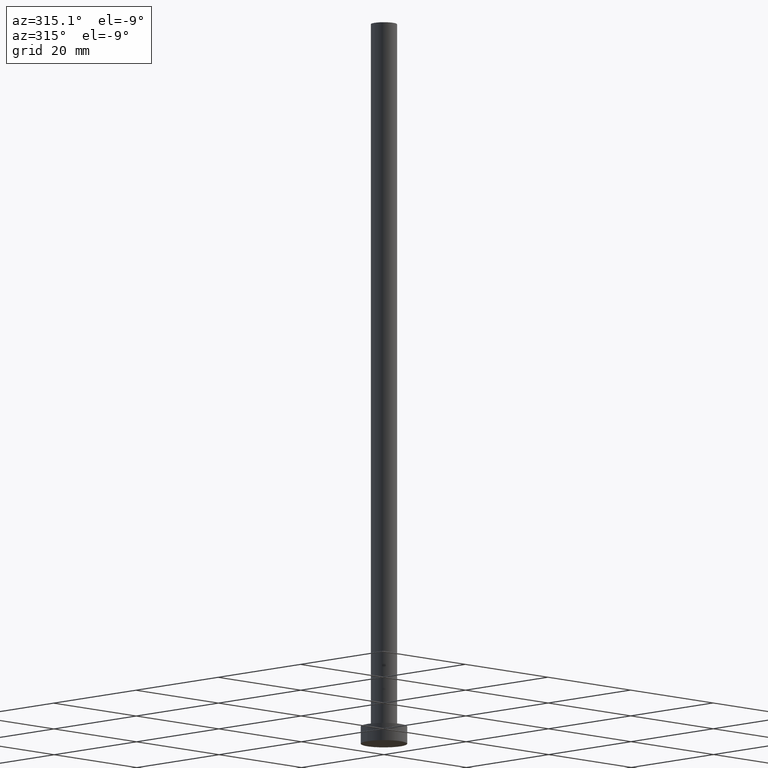
[diagram: clean part render]
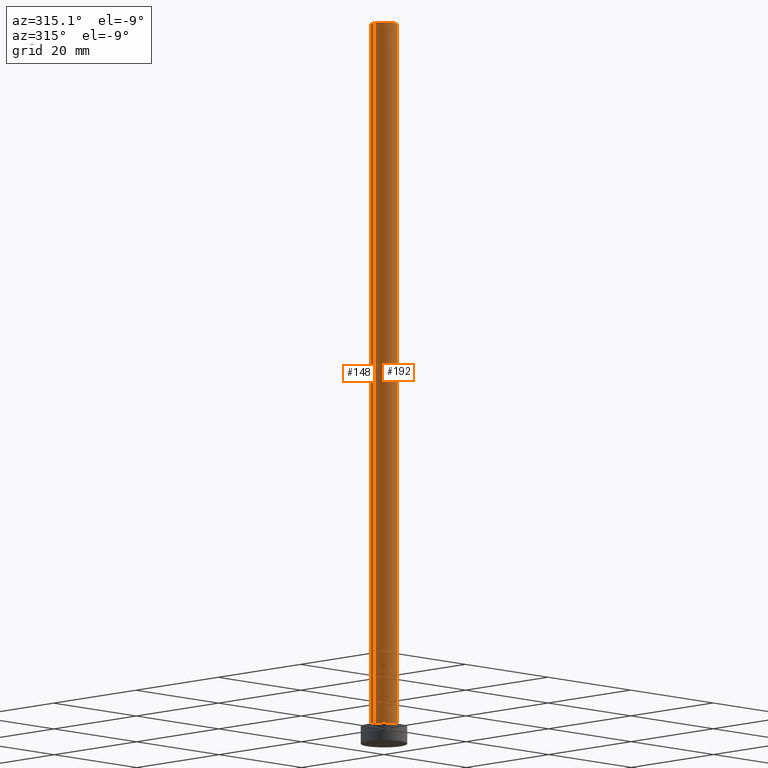
[diagram: same view with one multi-face feature highlighted, each face labeled with its STEP entity id]
A machine part, auxiliary view. The highlighted faces form ONE feature: a constant-radius fillet chain: 2 tangent blend faces with common blend radius 2.25 mm. The faces share edges in the B-rep.
Their STEP definitions:
[1] entity #148 (Cylinder):
#7 = DIRECTION ( 'NONE',  ( -0.000000000000000000, -0.000000000000000000, -1.000000000000000000 ) ) ;
#15 = EDGE_CURVE ( 'NONE', #175, #171, #78, .T. ) ;
#19 = DIRECTION ( 'NONE',  ( -1.000000000000000000, 0.000000000000000000, 0.000000000000000000 ) ) ;
#34 = EDGE_CURVE ( 'NONE', #136, #114, #228, .T. ) ;
#36 = ORIENTED_EDGE ( 'NONE', *, *, #15, .F. ) ;
#37 = FACE_OUTER_BOUND ( 'NONE', #191, .T. ) ;
#39 = CYLINDRICAL_SURFACE ( 'NONE', #249, 2.250000000000000000 ) ;
#40 = EDGE_CURVE ( 'NONE', #136, #175, #53, .T. ) ;
#50 = CARTESIAN_POINT ( 'NONE',  ( 2.250000000000000000, 2.755455298081543792E-16, 125.0000000000000000 ) ) ;
#53 = CIRCLE ( 'NONE', #88, 2.250000000000000000 ) ;
#55 = CARTESIAN_POINT ( 'NONE',  ( 0.000000000000000000, 0.000000000000000000, 125.0000000000000000 ) ) ;
#75 = AXIS2_PLACEMENT_3D ( 'NONE', #231, #197, #138 ) ;
#78 = LINE ( 'NONE', #156, #222 ) ;
#82 = CARTESIAN_POINT ( 'NONE',  ( 2.250000000000000000, 2.755455298081543792E-16, 125.0000000000000000 ) ) ;
#85 = DIRECTION ( 'NONE',  ( -0.000000000000000000, -0.000000000000000000, -1.000000000000000000 ) ) ;
#88 = AXIS2_PLACEMENT_3D ( 'NONE', #55, #151, #226 ) ;
#99 = ORIENTED_EDGE ( 'NONE', *, *, #153, .T. ) ;
#114 = VERTEX_POINT ( 'NONE', #217 ) ;
#121 = CARTESIAN_POINT ( 'NONE',  ( 0.000000000000000000, 0.000000000000000000, 125.0000000000000000 ) ) ;
#136 = VERTEX_POINT ( 'NONE', #82 ) ;
#138 = DIRECTION ( 'NONE',  ( 1.000000000000000000, 0.000000000000000000, 0.000000000000000000 ) ) ;
#145 = VECTOR ( 'NONE', #207, 1000.000000000000000 ) ;
#148 = ADVANCED_FACE ( 'NONE', ( #37 ), #39, .T. ) ;
#151 = DIRECTION ( 'NONE',  ( 0.000000000000000000, 0.000000000000000000, 1.000000000000000000 ) ) ;
#153 = EDGE_CURVE ( 'NONE', #114, #171, #185, .T. ) ;
#156 = CARTESIAN_POINT ( 'NONE',  ( -2.250000000000000000, 0.000000000000000000, 125.0000000000000000 ) ) ;
#171 = VERTEX_POINT ( 'NONE', #180 ) ;
#175 = VERTEX_POINT ( 'NONE', #253 ) ;
#180 = CARTESIAN_POINT ( 'NONE',  ( -2.250000000000000000, 0.000000000000000000, 3.000000000000000000 ) ) ;
#185 = CIRCLE ( 'NONE', #75, 2.250000000000000000 ) ;
#191 = EDGE_LOOP ( 'NONE', ( #193, #211, #99, #36 ) ) ;
#193 = ORIENTED_EDGE ( 'NONE', *, *, #40, .F. ) ;
#197 = DIRECTION ( 'NONE',  ( 0.000000000000000000, 0.000000000000000000, 1.000000000000000000 ) ) ;
#207 = DIRECTION ( 'NONE',  ( -0.000000000000000000, -0.000000000000000000, -1.000000000000000000 ) ) ;
#211 = ORIENTED_EDGE ( 'NONE', *, *, #34, .T. ) ;
#217 = CARTESIAN_POINT ( 'NONE',  ( 2.250000000000000000, 2.755455298081543792E-16, 3.000000000000000000 ) ) ;
#222 = VECTOR ( 'NONE', #7, 1000.000000000000000 ) ;
#226 = DIRECTION ( 'NONE',  ( 1.000000000000000000, 0.000000000000000000, 0.000000000000000000 ) ) ;
#228 = LINE ( 'NONE', #50, #145 ) ;
#231 = CARTESIAN_POINT ( 'NONE',  ( 0.000000000000000000, 0.000000000000000000, 3.000000000000000000 ) ) ;
#249 = AXIS2_PLACEMENT_3D ( 'NONE', #121, #85, #19 ) ;
#253 = CARTESIAN_POINT ( 'NONE',  ( -2.250000000000000000, 0.000000000000000000, 125.0000000000000000 ) ) ;
[2] entity #192 (Cylinder):
#7 = DIRECTION ( 'NONE',  ( -0.000000000000000000, -0.000000000000000000, -1.000000000000000000 ) ) ;
#13 = ORIENTED_EDGE ( 'NONE', *, *, #103, .T. ) ;
#14 = CARTESIAN_POINT ( 'NONE',  ( 0.000000000000000000, 0.000000000000000000, 125.0000000000000000 ) ) ;
#15 = EDGE_CURVE ( 'NONE', #175, #171, #78, .T. ) ;
#27 = EDGE_LOOP ( 'NONE', ( #66, #247, #57, #13 ) ) ;
#34 = EDGE_CURVE ( 'NONE', #136, #114, #228, .T. ) ;
#50 = CARTESIAN_POINT ( 'NONE',  ( 2.250000000000000000, 2.755455298081543792E-16, 125.0000000000000000 ) ) ;
#57 = ORIENTED_EDGE ( 'NONE', *, *, #15, .T. ) ;
#66 = ORIENTED_EDGE ( 'NONE', *, *, #34, .F. ) ;
#78 = LINE ( 'NONE', #156, #222 ) ;
#81 = DIRECTION ( 'NONE',  ( 1.000000000000000000, 0.000000000000000000, 0.000000000000000000 ) ) ;
#82 = CARTESIAN_POINT ( 'NONE',  ( 2.250000000000000000, 2.755455298081543792E-16, 125.0000000000000000 ) ) ;
#83 = EDGE_CURVE ( 'NONE', #175, #136, #224, .T. ) ;
#100 = DIRECTION ( 'NONE',  ( 0.000000000000000000, 0.000000000000000000, 1.000000000000000000 ) ) ;
#103 = EDGE_CURVE ( 'NONE', #171, #114, #128, .T. ) ;
#104 = DIRECTION ( 'NONE',  ( -1.000000000000000000, 0.000000000000000000, 0.000000000000000000 ) ) ;
#114 = VERTEX_POINT ( 'NONE', #217 ) ;
#118 = AXIS2_PLACEMENT_3D ( 'NONE', #160, #250, #81 ) ;
#128 = CIRCLE ( 'NONE', #118, 2.250000000000000000 ) ;
#136 = VERTEX_POINT ( 'NONE', #82 ) ;
#145 = VECTOR ( 'NONE', #207, 1000.000000000000000 ) ;
#156 = CARTESIAN_POINT ( 'NONE',  ( -2.250000000000000000, 0.000000000000000000, 125.0000000000000000 ) ) ;
#160 = CARTESIAN_POINT ( 'NONE',  ( 0.000000000000000000, 0.000000000000000000, 3.000000000000000000 ) ) ;
#161 = CYLINDRICAL_SURFACE ( 'NONE', #189, 2.250000000000000000 ) ;
#171 = VERTEX_POINT ( 'NONE', #180 ) ;
#175 = VERTEX_POINT ( 'NONE', #253 ) ;
#180 = CARTESIAN_POINT ( 'NONE',  ( -2.250000000000000000, 0.000000000000000000, 3.000000000000000000 ) ) ;
#181 = DIRECTION ( 'NONE',  ( 1.000000000000000000, 0.000000000000000000, 0.000000000000000000 ) ) ;
#189 = AXIS2_PLACEMENT_3D ( 'NONE', #233, #236, #104 ) ;
#192 = ADVANCED_FACE ( 'NONE', ( #202 ), #161, .T. ) ;
#194 = AXIS2_PLACEMENT_3D ( 'NONE', #14, #100, #181 ) ;
#202 = FACE_OUTER_BOUND ( 'NONE', #27, .T. ) ;
#207 = DIRECTION ( 'NONE',  ( -0.000000000000000000, -0.000000000000000000, -1.000000000000000000 ) ) ;
#217 = CARTESIAN_POINT ( 'NONE',  ( 2.250000000000000000, 2.755455298081543792E-16, 3.000000000000000000 ) ) ;
#222 = VECTOR ( 'NONE', #7, 1000.000000000000000 ) ;
#224 = CIRCLE ( 'NONE', #194, 2.250000000000000000 ) ;
#228 = LINE ( 'NONE', #50, #145 ) ;
#233 = CARTESIAN_POINT ( 'NONE',  ( 0.000000000000000000, 0.000000000000000000, 125.0000000000000000 ) ) ;
#236 = DIRECTION ( 'NONE',  ( -0.000000000000000000, -0.000000000000000000, -1.000000000000000000 ) ) ;
#247 = ORIENTED_EDGE ( 'NONE', *, *, #83, .F. ) ;
#250 = DIRECTION ( 'NONE',  ( 0.000000000000000000, 0.000000000000000000, 1.000000000000000000 ) ) ;
#253 = CARTESIAN_POINT ( 'NONE',  ( -2.250000000000000000, 0.000000000000000000, 125.0000000000000000 ) ) ;